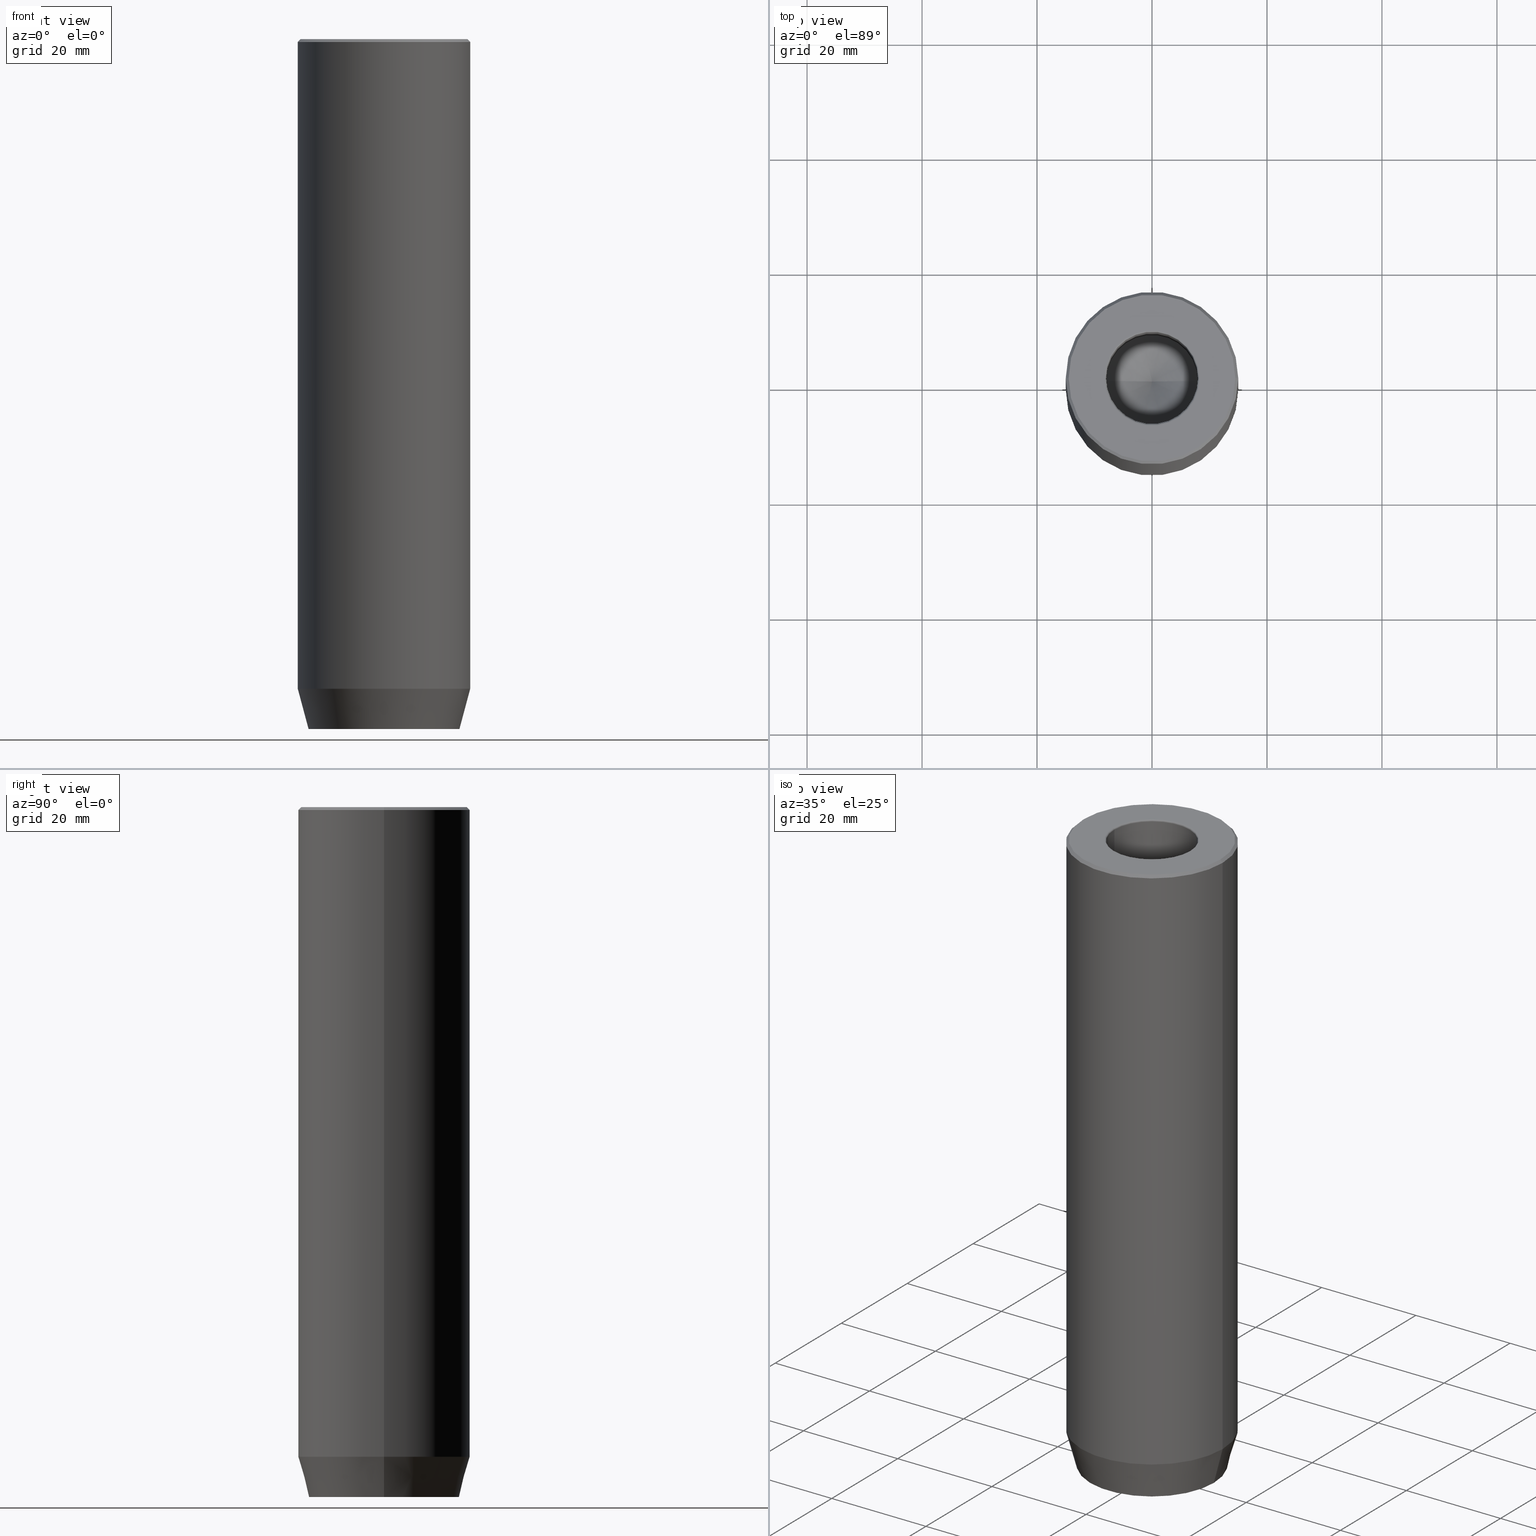
[diagram: canonical four-view strip — front | top / right | iso, engineering-drawing reading convention]
A machine part, canonical four-view strip (front | top / right | iso — engineering-drawing reading convention). The complete STEP part file that produces these views, byte-faithful:
ISO-10303-21;
HEADER;
FILE_DESCRIPTION (( 'STEP AP203' ),
    '1' );
FILE_NAME ('fe80.STEP',
    '2024-01-02T17:25:29',
    ( '' ),
    ( '' ),
    'SwSTEP 2.0',
    'SolidWorks 2019',
    '' );
FILE_SCHEMA (( 'CONFIG_CONTROL_DESIGN' ));
ENDSEC;

DATA;
#1 = CC_DESIGN_DATE_AND_TIME_ASSIGNMENT ( #409, #550, ( #103 ) ) ;
#2 = DIRECTION ( 'NONE',  ( 1.000000000000000000, 0.000000000000000000, 0.000000000000000000 ) ) ;
#3 = CONICAL_SURFACE ( 'NONE', #311, 14.49999999999999645, 0.7853981633974533860 ) ;
#4 = ORGANIZATION ( 'NEUR�EN�', 'NEUR�EN�', '' ) ;
#5 = DIRECTION ( 'NONE',  ( -1.000000000000000000, 1.224646799147353207E-16, 0.000000000000000000 ) ) ;
#6 =( NAMED_UNIT ( * ) PLANE_ANGLE_UNIT ( ) SI_UNIT ( $, .RADIAN. ) );
#7 = DIRECTION ( 'NONE',  ( 0.4999999999999999445, 0.8660254037844387076, -0.000000000000000000 ) ) ;
#8 = ORIENTED_EDGE ( 'NONE', *, *, #606, .F. ) ;
#9 = ORIENTED_EDGE ( 'NONE', *, *, #316, .T. ) ;
#10 = CARTESIAN_POINT ( 'NONE',  ( -7.999999999999994671, 9.797174393178819741E-16, -30.00000000000000000 ) ) ;
#11 = APPROVAL_DATE_TIME ( #548, #631 ) ;
#12 = VECTOR ( 'NONE', #487, 1000.000000000000000 ) ;
#13 = CARTESIAN_POINT ( 'NONE',  ( 0.000000000000000000, 0.000000000000000000, 0.000000000000000000 ) ) ;
#14 = VECTOR ( 'NONE', #278, 1000.000000000000000 ) ;
#15 = FACE_OUTER_BOUND ( 'NONE', #90, .T. ) ;
#16 = EDGE_CURVE ( 'NONE', #70, #596, #638, .T. ) ;
#17 = FACE_BOUND ( 'NONE', #270, .T. ) ;
#18 = CARTESIAN_POINT ( 'NONE',  ( 0.000000000000000000, 13.12435565298213369, -120.0000000000000000 ) ) ;
#19 = PERSON_AND_ORGANIZATION ( #236, #4 ) ;
#20 = PRODUCT ( 'fe80', 'fe80', '', ( #532 ) ) ;
#21 = CARTESIAN_POINT ( 'NONE',  ( 0.000000000000000000, 0.000000000000000000, -112.9999999999999858 ) ) ;
#22 = TOROIDAL_SURFACE ( 'NONE', #554, 8.299999999999997158, 0.2999999999999999889 ) ;
#23 = DIRECTION ( 'NONE',  ( 1.000000000000000000, 0.000000000000000000, 0.000000000000000000 ) ) ;
#24 = CIRCLE ( 'NONE', #263, 13.12435565298213369 ) ;
#25 = CC_DESIGN_APPROVAL ( #631, ( #103 ) ) ;
#26 = ORIENTED_EDGE ( 'NONE', *, *, #186, .F. ) ;
#27 = ADVANCED_FACE ( 'NONE', ( #275, #130 ), #382, .T. ) ;
#28 = DIRECTION ( 'NONE',  ( -0.000000000000000000, -0.000000000000000000, -1.000000000000000000 ) ) ;
#29 = FACE_OUTER_BOUND ( 'NONE', #361, .T. ) ;
#30 = ORIENTED_EDGE ( 'NONE', *, *, #316, .F. ) ;
#31 = DIRECTION ( 'NONE',  ( -1.000000000000000000, 0.000000000000000000, 0.000000000000000000 ) ) ;
#32 = ORIENTED_EDGE ( 'NONE', *, *, #100, .F. ) ;
#33 = ORIENTED_EDGE ( 'NONE', *, *, #589, .F. ) ;
#34 = DIRECTION ( 'NONE',  ( 0.2588190451025213501, 0.000000000000000000, 0.9659258262890680902 ) ) ;
#35 = ORIENTED_EDGE ( 'NONE', *, *, #568, .F. ) ;
#36 = CIRCLE ( 'NONE', #57, 8.299999999999997158 ) ;
#37 = VECTOR ( 'NONE', #28, 1000.000000000000000 ) ;
#38 = EDGE_LOOP ( 'NONE', ( #633, #33 ) ) ;
#39 = CARTESIAN_POINT ( 'NONE',  ( -15.00000000000000000, 1.836970198721029589E-15, -112.9999999999999858 ) ) ;
#40 = ADVANCED_FACE ( 'NONE', ( #29 ), #373, .F. ) ;
#41 = VERTEX_POINT ( 'NONE', #517 ) ;
#42 = PERSON_AND_ORGANIZATION_ROLE ( 'design_owner' ) ;
#43 = DIRECTION ( 'NONE',  ( -0.8660254037844387076, 0.4999999999999997224, 0.000000000000000000 ) ) ;
#44 = AXIS2_PLACEMENT_3D ( 'NONE', #619, #463, #479 ) ;
#45 = LINE ( 'NONE', #441, #12 ) ;
#46 = VECTOR ( 'NONE', #245, 1000.000000000000000 ) ;
#47 = AXIS2_PLACEMENT_3D ( 'NONE', #445, #260, #5 ) ;
#48 = ADVANCED_FACE ( 'NONE', ( #76 ), #73, .F. ) ;
#49 = LINE ( 'NONE', #443, #46 ) ;
#50 = ORIENTED_EDGE ( 'NONE', *, *, #289, .T. ) ;
#51 = PRODUCT_DEFINITION ( 'NEZN�M�', '', #170, #101 ) ;
#52 = VECTOR ( 'NONE', #438, 1000.000000000000000 ) ;
#53 = DATE_AND_TIME ( #495, #87 ) ;
#54 = CARTESIAN_POINT ( 'NONE',  ( -4.000000000000001776, -2.309401076758503368, -114.2000000000000028 ) ) ;
#55 = ORIENTED_EDGE ( 'NONE', *, *, #365, .T. ) ;
#56 = ORIENTED_EDGE ( 'NONE', *, *, #298, .T. ) ;
#57 = AXIS2_PLACEMENT_3D ( 'NONE', #13, #97, #549 ) ;
#58 = CIRCLE ( 'NONE', #538, 15.00000000000000000 ) ;
#59 = PLANE ( 'NONE',  #630 ) ;
#60 = ORIENTED_EDGE ( 'NONE', *, *, #153, .F. ) ;
#61 = ORIENTED_EDGE ( 'NONE', *, *, #132, .F. ) ;
#62 = DIRECTION ( 'NONE',  ( -0.000000000000000000, -0.000000000000000000, 1.000000000000000000 ) ) ;
#63 = FACE_OUTER_BOUND ( 'NONE', #286, .T. ) ;
#64 = CIRCLE ( 'NONE', #225, 7.999999999999994671 ) ;
#65 = EDGE_CURVE ( 'NONE', #302, #269, #189, .T. ) ;
#66 = DIRECTION ( 'NONE',  ( 3.755786496842898071E-16, 1.000000000000000000, 0.000000000000000000 ) ) ;
#67 = EDGE_CURVE ( 'NONE', #422, #106, #467, .T. ) ;
#68 = ORIENTED_EDGE ( 'NONE', *, *, #617, .F. ) ;
#69 = CARTESIAN_POINT ( 'NONE',  ( 8.673617379884035472E-16, -4.618802153517004960, -114.2000000000000028 ) ) ;
#70 = VERTEX_POINT ( 'NONE', #230 ) ;
#71 = APPROVAL_STATUS ( 'not_yet_approved' ) ;
#72 = PLANE ( 'NONE',  #212 ) ;
#73 = PLANE ( 'NONE',  #384 ) ;
#74 = APPLICATION_CONTEXT ( 'configuration controlled 3d designs of mechanical parts and assemblies' ) ;
#75 = DIRECTION ( 'NONE',  ( 1.000000000000000000, 0.000000000000000000, 0.000000000000000000 ) ) ;
#76 = FACE_OUTER_BOUND ( 'NONE', #399, .T. ) ;
#77 = AXIS2_PLACEMENT_3D ( 'NONE', #121, #516, #229 ) ;
#78 = ORIENTED_EDGE ( 'NONE', *, *, #514, .T. ) ;
#79 = DIRECTION ( 'NONE',  ( -0.000000000000000000, -0.000000000000000000, 1.000000000000000000 ) ) ;
#80 = DIRECTION ( 'NONE',  ( -3.755786496842898071E-16, -1.000000000000000000, 0.000000000000000000 ) ) ;
#81 = DIRECTION ( 'NONE',  ( -0.000000000000000000, -0.000000000000000000, 1.000000000000000000 ) ) ;
#82 = ORIENTED_EDGE ( 'NONE', *, *, #364, .F. ) ;
#83 = EDGE_LOOP ( 'NONE', ( #217, #234, #579, #128 ) ) ;
#84 = CARTESIAN_POINT ( 'NONE',  ( 0.000000000000000000, 0.000000000000000000, -114.2000000000000028 ) ) ;
#85 = DIRECTION ( 'NONE',  ( 1.000000000000000000, 0.000000000000000000, 0.000000000000000000 ) ) ;
#86 = EDGE_CURVE ( 'NONE', #561, #158, #431, .T. ) ;
#87 = LOCAL_TIME ( 18, 25, 29.00000000000000000, #192 ) ;
#88 = ORIENTED_EDGE ( 'NONE', *, *, #233, .F. ) ;
#89 = DIRECTION ( 'NONE',  ( -0.000000000000000000, -0.000000000000000000, 1.000000000000000000 ) ) ;
#90 = EDGE_LOOP ( 'NONE', ( #461, #60, #123, #290 ) ) ;
#91 = PLANE ( 'NONE',  #455 ) ;
#92 = EDGE_LOOP ( 'NONE', ( #592, #280, #26, #428 ) ) ;
#93 = ADVANCED_FACE ( 'NONE', ( #323 ), #488, .T. ) ;
#94 = LINE ( 'NONE', #574, #143 ) ;
#95 = VECTOR ( 'NONE', #416, 999.9999999999998863 ) ;
#96 = CARTESIAN_POINT ( 'NONE',  ( 7.999999999999996447, 0.000000000000000000, 0.000000000000000000 ) ) ;
#97 = DIRECTION ( 'NONE',  ( 0.000000000000000000, 0.000000000000000000, -1.000000000000000000 ) ) ;
#98 = CARTESIAN_POINT ( 'NONE',  ( -4.000000000000001776, -2.309401076758503368, -120.0000000000000000 ) ) ;
#99 = CARTESIAN_POINT ( 'NONE',  ( -4.000000000000000888, 1.502314598737159623E-15, -114.2000000000000028 ) ) ;
#100 = EDGE_CURVE ( 'NONE', #191, #302, #375, .T. ) ;
#101 = DESIGN_CONTEXT ( 'detailed design', #74, 'design' ) ;
#102 = CIRCLE ( 'NONE', #312, 14.49999999999999645 ) ;
#103 = SECURITY_CLASSIFICATION ( '', '', #215 ) ;
#104 = DIRECTION ( 'NONE',  ( 3.755786496842898071E-16, 1.000000000000000000, 0.000000000000000000 ) ) ;
#105 = APPROVAL_DATE_TIME ( #53, #562 ) ;
#106 = VERTEX_POINT ( 'NONE', #142 ) ;
#107 = DIRECTION ( 'NONE',  ( 0.5000000000000000000, -0.8660254037844387076, 0.000000000000000000 ) ) ;
#108 = SHAPE_DEFINITION_REPRESENTATION ( #594, #634 ) ;
#109 = EDGE_CURVE ( 'NONE', #402, #269, #444, .T. ) ;
#110 = EDGE_CURVE ( 'NONE', #158, #612, #294, .T. ) ;
#111 = CARTESIAN_POINT ( 'NONE',  ( 1.999999999999999556, -3.464101615137754386, -114.2000000000000028 ) ) ;
#112 = ORIENTED_EDGE ( 'NONE', *, *, #224, .T. ) ;
#113 = VECTOR ( 'NONE', #140, 1000.000000000000000 ) ;
#114 = CIRCLE ( 'NONE', #284, 15.00000000000000000 ) ;
#115 = FACE_OUTER_BOUND ( 'NONE', #276, .T. ) ;
#116 = DIRECTION ( 'NONE',  ( -0.000000000000000000, -0.000000000000000000, 1.000000000000000000 ) ) ;
#117 = PERSON_AND_ORGANIZATION_ROLE ( 'creator' ) ;
#118 = DIRECTION ( 'NONE',  ( 1.000000000000000000, 0.000000000000000000, 0.000000000000000000 ) ) ;
#119 = ORIENTED_EDGE ( 'NONE', *, *, #365, .F. ) ;
#120 = CALENDAR_DATE ( 2024, 2, 1 ) ;
#121 = CARTESIAN_POINT ( 'NONE',  ( 0.000000000000000000, 0.000000000000000000, -112.9999999999999858 ) ) ;
#122 = DIRECTION ( 'NONE',  ( -0.8660254037844385966, -0.4999999999999998890, 0.000000000000000000 ) ) ;
#123 = ORIENTED_EDGE ( 'NONE', *, *, #568, .T. ) ;
#124 = DIRECTION ( 'NONE',  ( 1.000000000000000000, 0.000000000000000000, 0.000000000000000000 ) ) ;
#125 = VECTOR ( 'NONE', #489, 1000.000000000000227 ) ;
#126 = EDGE_LOOP ( 'NONE', ( #68, #112, #569, #572 ) ) ;
#127 = CIRCLE ( 'NONE', #357, 13.12435565298213369 ) ;
#128 = ORIENTED_EDGE ( 'NONE', *, *, #235, .T. ) ;
#129 = CARTESIAN_POINT ( 'NONE',  ( 2.000000000000000000, 3.464101615137755275, -114.2000000000000028 ) ) ;
#130 = FACE_OUTER_BOUND ( 'NONE', #38, .T. ) ;
#131 = EDGE_LOOP ( 'NONE', ( #61, #282, #505, #327 ) ) ;
#132 = EDGE_CURVE ( 'NONE', #160, #70, #94, .T. ) ;
#133 = DIRECTION ( 'NONE',  ( 1.000000000000000000, 0.000000000000000000, 0.000000000000000000 ) ) ;
#134 = VECTOR ( 'NONE', #122, 1000.000000000000227 ) ;
#135 = DIRECTION ( 'NONE',  ( 1.000000000000000000, 0.000000000000000000, 0.000000000000000000 ) ) ;
#136 = ORIENTED_EDGE ( 'NONE', *, *, #523, .T. ) ;
#137 = DIRECTION ( 'NONE',  ( 1.000000000000000000, 0.000000000000000000, 0.000000000000000000 ) ) ;
#138 = CARTESIAN_POINT ( 'NONE',  ( -7.999999999999994671, 9.797174393178819741E-16, -30.00000000000000000 ) ) ;
#139 = VECTOR ( 'NONE', #560, 1000.000000000000000 ) ;
#140 = DIRECTION ( 'NONE',  ( -0.000000000000000000, -0.000000000000000000, -1.000000000000000000 ) ) ;
#141 = ADVANCED_FACE ( 'NONE', ( #197 ), #394, .F. ) ;
#142 = CARTESIAN_POINT ( 'NONE',  ( 4.000000000000000000, -2.309401076758503368, -114.2000000000000028 ) ) ;
#143 = VECTOR ( 'NONE', #89, 1000.000000000000000 ) ;
#144 = MANIFOLD_SOLID_BREP ( 'Odebrat vysunut�m1', #219 ) ;
#145 = DIRECTION ( 'NONE',  ( -0.000000000000000000, 0.000000000000000000, -1.000000000000000000 ) ) ;
#146 = AXIS2_PLACEMENT_3D ( 'NONE', #492, #625, #135 ) ;
#147 = CIRCLE ( 'NONE', #408, 7.999999999999994671 ) ;
#148 = ORIENTED_EDGE ( 'NONE', *, *, #65, .T. ) ;
#149 = CC_DESIGN_APPROVAL ( #500, ( #170 ) ) ;
#150 = CARTESIAN_POINT ( 'NONE',  ( 7.999999999999996447, 0.000000000000000000, -0.2999999999999999889 ) ) ;
#151 = ORIENTED_EDGE ( 'NONE', *, *, #163, .F. ) ;
#152 = PLANE ( 'NONE',  #200 ) ;
#153 = EDGE_CURVE ( 'NONE', #178, #513, #452, .T. ) ;
#154 = DIRECTION ( 'NONE',  ( 0.8660254037844385966, 0.4999999999999999445, 0.000000000000000000 ) ) ;
#155 = EDGE_LOOP ( 'NONE', ( #358, #305, #436, #172, #78, #50 ) ) ;
#156 = FACE_OUTER_BOUND ( 'NONE', #155, .T. ) ;
#157 = CYLINDRICAL_SURFACE ( 'NONE', #295, 15.00000000000000000 ) ;
#158 = VERTEX_POINT ( 'NONE', #248 ) ;
#159 = PERSON_AND_ORGANIZATION ( #236, #4 ) ;
#160 = VERTEX_POINT ( 'NONE', #39 ) ;
#161 = VECTOR ( 'NONE', #499, 1000.000000000000000 ) ;
#162 = LINE ( 'NONE', #10, #161 ) ;
#163 = EDGE_CURVE ( 'NONE', #422, #256, #49, .T. ) ;
#164 = COORDINATED_UNIVERSAL_TIME_OFFSET ( 1, 0, .AHEAD. ) ;
#165 = LINE ( 'NONE', #99, #507 ) ;
#166 = CALENDAR_DATE ( 2024, 2, 1 ) ;
#167 = CARTESIAN_POINT ( 'NONE',  ( 0.000000000000000000, 0.000000000000000000, 0.000000000000000000 ) ) ;
#168 = VERTEX_POINT ( 'NONE', #250 ) ;
#169 = VECTOR ( 'NONE', #407, 1000.000000000000000 ) ;
#170 = PRODUCT_DEFINITION_FORMATION_WITH_SPECIFIED_SOURCE ( 'LIBOVOLN�', '', #20, .NOT_KNOWN. ) ;
#171 = DIRECTION ( 'NONE',  ( -0.8660254037844387076, 0.4999999999999997224, 0.000000000000000000 ) ) ;
#172 = ORIENTED_EDGE ( 'NONE', *, *, #186, .T. ) ;
#173 = PERSON_AND_ORGANIZATION_ROLE ( 'classification_officer' ) ;
#174 = CARTESIAN_POINT ( 'NONE',  ( 7.999999999999994671, 0.000000000000000000, -30.00000000000000000 ) ) ;
#175 = EDGE_CURVE ( 'NONE', #464, #247, #299, .T. ) ;
#176 = ORIENTED_EDGE ( 'NONE', *, *, #345, .T. ) ;
#177 = APPLICATION_CONTEXT ( 'configuration controlled 3d designs of mechanical parts and assemblies' ) ;
#178 = VERTEX_POINT ( 'NONE', #334 ) ;
#179 = CARTESIAN_POINT ( 'NONE',  ( 0.000000000000000000, 0.000000000000000000, -0.2999999999999999889 ) ) ;
#180 = DIRECTION ( 'NONE',  ( 1.000000000000000000, 0.000000000000000000, 0.000000000000000000 ) ) ;
#181 = VERTEX_POINT ( 'NONE', #285 ) ;
#182 = CARTESIAN_POINT ( 'NONE',  ( 0.000000000000000000, 0.000000000000000000, 0.000000000000000000 ) ) ;
#183 = AXIS2_PLACEMENT_3D ( 'NONE', #403, #400, #434 ) ;
#184 = DIRECTION ( 'NONE',  ( -1.000000000000000000, 0.000000000000000000, -0.000000000000000000 ) ) ;
#185 = ADVANCED_FACE ( 'NONE', ( #578 ), #635, .F. ) ;
#186 = EDGE_CURVE ( 'NONE', #106, #519, #347, .T. ) ;
#187 = LINE ( 'NONE', #430, #398 ) ;
#188 = DIRECTION ( 'NONE',  ( -0.000000000000000000, -0.000000000000000000, 1.000000000000000000 ) ) ;
#189 = CIRCLE ( 'NONE', #543, 7.999999999999996447 ) ;
#190 = DIRECTION ( 'NONE',  ( -0.000000000000000000, -0.000000000000000000, 1.000000000000000000 ) ) ;
#191 = VERTEX_POINT ( 'NONE', #138 ) ;
#192 = COORDINATED_UNIVERSAL_TIME_OFFSET ( 1, 0, .AHEAD. ) ;
#193 = CARTESIAN_POINT ( 'NONE',  ( -2.000000000000000000, 3.464101615137755275, -120.0000000000000000 ) ) ;
#194 = VECTOR ( 'NONE', #618, 1000.000000000000000 ) ;
#195 = VERTEX_POINT ( 'NONE', #539 ) ;
#196 = DIRECTION ( 'NONE',  ( 0.8660254037844387076, -0.4999999999999997780, 0.000000000000000000 ) ) ;
#197 = FACE_OUTER_BOUND ( 'NONE', #527, .T. ) ;
#198 = CARTESIAN_POINT ( 'NONE',  ( 0.000000000000000000, 0.000000000000000000, 0.000000000000000000 ) ) ;
#199 = AXIS2_PLACEMENT_3D ( 'NONE', #310, #506, #362 ) ;
#200 = AXIS2_PLACEMENT_3D ( 'NONE', #84, #333, #337 ) ;
#201 = CARTESIAN_POINT ( 'NONE',  ( 4.000000000000000000, -2.309401076758503368, -120.0000000000000000 ) ) ;
#202 = ADVANCED_FACE ( 'NONE', ( #435 ), #306, .T. ) ;
#203 = LINE ( 'NONE', #459, #169 ) ;
#204 = CARTESIAN_POINT ( 'NONE',  ( 0.000000000000000000, 0.000000000000000000, -120.0000000000000000 ) ) ;
#205 = DIRECTION ( 'NONE',  ( 0.000000000000000000, 0.000000000000000000, -1.000000000000000000 ) ) ;
#206 = AXIS2_PLACEMENT_3D ( 'NONE', #623, #188, #180 ) ;
#207 = DIRECTION ( 'NONE',  ( -0.000000000000000000, -0.000000000000000000, -1.000000000000000000 ) ) ;
#208 = EDGE_CURVE ( 'NONE', #106, #561, #339, .T. ) ;
#209 = AXIS2_PLACEMENT_3D ( 'NONE', #584, #288, #145 ) ;
#210 = PERSON_AND_ORGANIZATION ( #236, #4 ) ;
#211 = VECTOR ( 'NONE', #309, 1000.000000000000000 ) ;
#212 = AXIS2_PLACEMENT_3D ( 'NONE', #271, #466, #226 ) ;
#213 = DIRECTION ( 'NONE',  ( -0.000000000000000000, -0.000000000000000000, 1.000000000000000000 ) ) ;
#214 = ORIENTED_EDGE ( 'NONE', *, *, #132, .T. ) ;
#215 = SECURITY_CLASSIFICATION_LEVEL ( 'unclassified' ) ;
#216 = CARTESIAN_POINT ( 'NONE',  ( 4.000000000000000000, 2.309401076758504257, -114.2000000000000028 ) ) ;
#217 = ORIENTED_EDGE ( 'NONE', *, *, #110, .T. ) ;
#218 = APPROVAL_ROLE ( '' ) ;
#219 = CLOSED_SHELL ( 'NONE', ( #202, #141, #503, #411, #277, #404, #27, #497, #627, #93, #297, #432, #40, #324, #541, #48, #251, #268, #185, #393, #637 ) ) ;
#220 = FACE_OUTER_BOUND ( 'NONE', #475, .T. ) ;
#221 = ORIENTED_EDGE ( 'NONE', *, *, #449, .F. ) ;
#222 = PERSON_AND_ORGANIZATION_ROLE ( 'design_supplier' ) ;
#223 = VECTOR ( 'NONE', #392, 1000.000000000000000 ) ;
#224 = EDGE_CURVE ( 'NONE', #195, #596, #45, .T. ) ;
#225 = AXIS2_PLACEMENT_3D ( 'NONE', #597, #622, #133 ) ;
#226 = DIRECTION ( 'NONE',  ( -0.8660254037844385966, -0.4999999999999998890, 0.000000000000000000 ) ) ;
#227 = CARTESIAN_POINT ( 'NONE',  ( 4.000000000000000000, 0.000000000000000000, -114.2000000000000028 ) ) ;
#228 = CC_DESIGN_PERSON_AND_ORGANIZATION_ASSIGNMENT ( #19, #117, ( #51 ) ) ;
#229 = DIRECTION ( 'NONE',  ( 1.000000000000000000, 0.000000000000000000, 0.000000000000000000 ) ) ;
#230 = CARTESIAN_POINT ( 'NONE',  ( -15.00000000000000000, 1.836970198721029589E-15, -0.4999999999999970024 ) ) ;
#231 = ORIENTED_EDGE ( 'NONE', *, *, #547, .F. ) ;
#232 = LINE ( 'NONE', #462, #14 ) ;
#233 = EDGE_CURVE ( 'NONE', #414, #247, #244, .T. ) ;
#234 = ORIENTED_EDGE ( 'NONE', *, *, #340, .F. ) ;
#235 = EDGE_CURVE ( 'NONE', #519, #158, #582, .T. ) ;
#236 = PERSON ( 'NEUR�EN�', 'NEUR�EN�', 'NEUR�EN�', ('NEUR�EN�'), ('NEUR�EN�'), ('NEUR�EN�') ) ;
#237 = ORIENTED_EDGE ( 'NONE', *, *, #208, .F. ) ;
#238 = CARTESIAN_POINT ( 'NONE',  ( 0.000000000000000000, 0.000000000000000000, 0.000000000000000000 ) ) ;
#239 = AXIS2_PLACEMENT_3D ( 'NONE', #315, #374, #124 ) ;
#240 = DIRECTION ( 'NONE',  ( 0.000000000000000000, -1.000000000000000000, 0.000000000000000000 ) ) ;
#241 = CARTESIAN_POINT ( 'NONE',  ( 2.168404344971008868E-16, 4.618802153517005848, -114.2000000000000028 ) ) ;
#242 = VERTEX_POINT ( 'NONE', #341 ) ;
#243 = PERSON_AND_ORGANIZATION ( #236, #4 ) ;
#244 = LINE ( 'NONE', #193, #336 ) ;
#245 = DIRECTION ( 'NONE',  ( -0.000000000000000000, -0.000000000000000000, -1.000000000000000000 ) ) ;
#246 = AXIS2_PLACEMENT_3D ( 'NONE', #179, #525, #75 ) ;
#247 = VERTEX_POINT ( 'NONE', #534 ) ;
#248 = CARTESIAN_POINT ( 'NONE',  ( 8.673617379884035472E-16, -4.618802153517004960, -120.0000000000000000 ) ) ;
#249 = ORIENTED_EDGE ( 'NONE', *, *, #364, .T. ) ;
#250 = CARTESIAN_POINT ( 'NONE',  ( -8.296478875781655917E-15, 0.000000000000000000, -34.80688495222048573 ) ) ;
#251 = ADVANCED_FACE ( 'NONE', ( #537 ), #91, .F. ) ;
#252 = DIRECTION ( 'NONE',  ( 1.000000000000000000, 0.000000000000000000, 0.000000000000000000 ) ) ;
#253 = CARTESIAN_POINT ( 'NONE',  ( -7.999999999999996447, 9.797174393178821713E-16, -0.2999999999999999889 ) ) ;
#254 = VERTEX_POINT ( 'NONE', #583 ) ;
#255 = LOCAL_TIME ( 18, 25, 29.00000000000000000, #419 ) ;
#256 = VERTEX_POINT ( 'NONE', #454 ) ;
#257 = CARTESIAN_POINT ( 'NONE',  ( 2.000000000000000000, 3.464101615137755275, -114.2000000000000028 ) ) ;
#258 = ORIENTED_EDGE ( 'NONE', *, *, #109, .T. ) ;
#259 = EDGE_CURVE ( 'NONE', #262, #596, #496, .T. ) ;
#260 = DIRECTION ( 'NONE',  ( 1.224646799147353207E-16, 1.000000000000000000, 0.000000000000000000 ) ) ;
#261 = CARTESIAN_POINT ( 'NONE',  ( -4.000000000000000888, 1.502314598737159623E-15, -120.0000000000000000 ) ) ;
#262 = VERTEX_POINT ( 'NONE', #602 ) ;
#263 = AXIS2_PLACEMENT_3D ( 'NONE', #204, #349, #2 ) ;
#264 = CARTESIAN_POINT ( 'NONE',  ( 0.000000000000000000, 0.000000000000000000, -0.2999999999999999889 ) ) ;
#265 = DATE_AND_TIME ( #166, #255 ) ;
#266 = CARTESIAN_POINT ( 'NONE',  ( 0.000000000000000000, 0.000000000000000000, -120.0000000000000000 ) ) ;
#267 = EDGE_LOOP ( 'NONE', ( #292, #214, #624, #521 ) ) ;
#268 = ADVANCED_FACE ( 'NONE', ( #397 ), #551, .F. ) ;
#269 = VERTEX_POINT ( 'NONE', #150 ) ;
#270 = EDGE_LOOP ( 'NONE', ( #380, #9 ) ) ;
#271 = CARTESIAN_POINT ( 'NONE',  ( -2.000000000000000000, 3.464101615137755275, -114.2000000000000028 ) ) ;
#272 = CARTESIAN_POINT ( 'NONE',  ( -4.000000000000000888, 1.502314598737159623E-15, -114.2000000000000028 ) ) ;
#273 = VECTOR ( 'NONE', #451, 999.9999999999998863 ) ;
#274 = DIRECTION ( 'NONE',  ( -0.000000000000000000, -0.000000000000000000, 1.000000000000000000 ) ) ;
#275 = FACE_BOUND ( 'NONE', #433, .T. ) ;
#276 = EDGE_LOOP ( 'NONE', ( #231, #481, #545 ) ) ;
#277 = ADVANCED_FACE ( 'NONE', ( #504 ), #346, .T. ) ;
#278 = DIRECTION ( 'NONE',  ( 0.000000000000000000, -1.000000000000000000, 0.000000000000000000 ) ) ;
#279 = DIRECTION ( 'NONE',  ( -0.000000000000000000, -0.000000000000000000, 1.000000000000000000 ) ) ;
#280 = ORIENTED_EDGE ( 'NONE', *, *, #235, .F. ) ;
#281 = CARTESIAN_POINT ( 'NONE',  ( -14.49999999999999645, 0.000000000000000000, 0.000000000000000000 ) ) ;
#282 = ORIENTED_EDGE ( 'NONE', *, *, #524, .T. ) ;
#283 =( NAMED_UNIT ( * ) SI_UNIT ( $, .STERADIAN. ) SOLID_ANGLE_UNIT ( ) );
#284 = AXIS2_PLACEMENT_3D ( 'NONE', #21, #274, #318 ) ;
#285 = CARTESIAN_POINT ( 'NONE',  ( -4.000000000000000000, 2.309401076758504257, -114.2000000000000028 ) ) ;
#286 = EDGE_LOOP ( 'NONE', ( #383, #119, #421, #457 ) ) ;
#287 = APPLICATION_PROTOCOL_DEFINITION ( 'international standard', 'config_control_design', 1994, #177 ) ;
#288 = DIRECTION ( 'NONE',  ( 1.000000000000000000, 0.000000000000000000, -0.000000000000000000 ) ) ;
#289 = EDGE_CURVE ( 'NONE', #242, #181, #165, .T. ) ;
#290 = ORIENTED_EDGE ( 'NONE', *, *, #65, .F. ) ;
#291 = CARTESIAN_POINT ( 'NONE',  ( -1.999999999999999112, -3.464101615137755275, -114.2000000000000028 ) ) ;
#292 = ORIENTED_EDGE ( 'NONE', *, *, #556, .T. ) ;
#293 = AXIS2_PLACEMENT_3D ( 'NONE', #111, #107, #154 ) ;
#294 = LINE ( 'NONE', #529, #575 ) ;
#295 = AXIS2_PLACEMENT_3D ( 'NONE', #501, #62, #356 ) ;
#296 = LOCAL_TIME ( 18, 25, 29.00000000000000000, #558 ) ;
#297 = ADVANCED_FACE ( 'NONE', ( #63 ), #3, .T. ) ;
#298 = EDGE_CURVE ( 'NONE', #612, #414, #591, .T. ) ;
#299 = LINE ( 'NONE', #241, #223 ) ;
#300 = APPLICATION_PROTOCOL_DEFINITION ( 'international standard', 'config_control_design', 1994, #74 ) ;
#301 = LINE ( 'NONE', #54, #367 ) ;
#302 = VERTEX_POINT ( 'NONE', #253 ) ;
#303 = DIRECTION ( 'NONE',  ( -0.000000000000000000, -0.000000000000000000, 1.000000000000000000 ) ) ;
#304 = LINE ( 'NONE', #450, #273 ) ;
#305 = ORIENTED_EDGE ( 'NONE', *, *, #412, .T. ) ;
#306 = TOROIDAL_SURFACE ( 'NONE', #396, 8.299999999999997158, 0.2999999999999999889 ) ;
#307 = AXIS2_PLACEMENT_3D ( 'NONE', #593, #381, #483 ) ;
#308 = FACE_OUTER_BOUND ( 'NONE', #536, .T. ) ;
#309 = DIRECTION ( 'NONE',  ( -0.000000000000000000, -0.000000000000000000, 1.000000000000000000 ) ) ;
#310 = CARTESIAN_POINT ( 'NONE',  ( 0.000000000000000000, 0.000000000000000000, -112.9999999999999858 ) ) ;
#311 = AXIS2_PLACEMENT_3D ( 'NONE', #351, #205, #601 ) ;
#312 = AXIS2_PLACEMENT_3D ( 'NONE', #401, #353, #544 ) ;
#313 = EDGE_LOOP ( 'NONE', ( #325, #559, #321 ) ) ;
#314 = APPROVAL_PERSON_ORGANIZATION ( #210, #631, #465 ) ;
#315 = CARTESIAN_POINT ( 'NONE',  ( 0.000000000000000000, 0.000000000000000000, -30.00000000000000000 ) ) ;
#316 = EDGE_CURVE ( 'NONE', #513, #178, #36, .T. ) ;
#317 = DIRECTION ( 'NONE',  ( 1.000000000000000000, 0.000000000000000000, 0.000000000000000000 ) ) ;
#318 = DIRECTION ( 'NONE',  ( 1.000000000000000000, 0.000000000000000000, 0.000000000000000000 ) ) ;
#319 = ORIENTED_EDGE ( 'NONE', *, *, #298, .F. ) ;
#320 = CC_DESIGN_PERSON_AND_ORGANIZATION_ASSIGNMENT ( #159, #610, ( #170 ) ) ;
#321 = ORIENTED_EDGE ( 'NONE', *, *, #470, .T. ) ;
#322 = LINE ( 'NONE', #509, #376 ) ;
#323 = FACE_OUTER_BOUND ( 'NONE', #515, .T. ) ;
#324 = ADVANCED_FACE ( 'NONE', ( #15 ), #22, .T. ) ;
#325 = ORIENTED_EDGE ( 'NONE', *, *, #385, .F. ) ;
#326 = DIRECTION ( 'NONE',  ( 0.000000000000000000, 0.000000000000000000, -1.000000000000000000 ) ) ;
#327 = ORIENTED_EDGE ( 'NONE', *, *, #585, .T. ) ;
#328 = ORIENTED_EDGE ( 'NONE', *, *, #412, .F. ) ;
#329 = CC_DESIGN_PERSON_AND_ORGANIZATION_ASSIGNMENT ( #486, #42, ( #20 ) ) ;
#330 = CARTESIAN_POINT ( 'NONE',  ( -13.12435565298213369, 1.722120106425316888E-15, -120.0000000000000000 ) ) ;
#331 = CARTESIAN_POINT ( 'NONE',  ( 0.000000000000000000, 0.000000000000000000, 0.000000000000000000 ) ) ;
#332 = ORIENTED_EDGE ( 'NONE', *, *, #456, .T. ) ;
#333 = DIRECTION ( 'NONE',  ( 0.000000000000000000, 0.000000000000000000, -1.000000000000000000 ) ) ;
#334 = CARTESIAN_POINT ( 'NONE',  ( 8.299999999999997158, 0.000000000000000000, 0.000000000000000000 ) ) ;
#335 = ORIENTED_EDGE ( 'NONE', *, *, #606, .T. ) ;
#336 = VECTOR ( 'NONE', #391, 999.9999999999998863 ) ;
#337 = DIRECTION ( 'NONE',  ( -1.000000000000000000, 0.000000000000000000, -0.000000000000000000 ) ) ;
#338 = AXIS2_PLACEMENT_3D ( 'NONE', #386, #577, #137 ) ;
#339 = LINE ( 'NONE', #533, #490 ) ;
#340 = EDGE_CURVE ( 'NONE', #242, #612, #301, .T. ) ;
#341 = CARTESIAN_POINT ( 'NONE',  ( -4.000000000000001776, -2.309401076758503368, -114.2000000000000028 ) ) ;
#342 = CARTESIAN_POINT ( 'NONE',  ( 8.673617379884035472E-16, -4.618802153517004960, -114.2000000000000028 ) ) ;
#343 = EDGE_CURVE ( 'NONE', #472, #160, #203, .T. ) ;
#344 = ORIENTED_EDGE ( 'NONE', *, *, #340, .T. ) ;
#345 = EDGE_CURVE ( 'NONE', #513, #302, #418, .T. ) ;
#346 = CONICAL_SURFACE ( 'NONE', #199, 15.00000000000000000, 0.2617993877991500740 ) ;
#347 = LINE ( 'NONE', #484, #125 ) ;
#348 = AXIS2_PLACEMENT_3D ( 'NONE', #167, #366, #553 ) ;
#349 = DIRECTION ( 'NONE',  ( -0.000000000000000000, -0.000000000000000000, 1.000000000000000000 ) ) ;
#350 = CC_DESIGN_PERSON_AND_ORGANIZATION_ASSIGNMENT ( #371, #173, ( #103 ) ) ;
#351 = CARTESIAN_POINT ( 'NONE',  ( 0.000000000000000000, 0.000000000000000000, 0.000000000000000000 ) ) ;
#352 = CARTESIAN_POINT ( 'NONE',  ( 0.000000000000000000, 0.000000000000000000, -0.4999999999999970024 ) ) ;
#353 = DIRECTION ( 'NONE',  ( -0.000000000000000000, -0.000000000000000000, 1.000000000000000000 ) ) ;
#354 =( LENGTH_UNIT ( ) NAMED_UNIT ( * ) SI_UNIT ( .MILLI., .METRE. ) );
#355 = UNCERTAINTY_MEASURE_WITH_UNIT (LENGTH_MEASURE( 1.000000000000000082E-05 ), #354, 'distance_accuracy_value', 'NONE');
#356 = DIRECTION ( 'NONE',  ( 1.000000000000000000, 0.000000000000000000, 0.000000000000000000 ) ) ;
#357 = AXIS2_PLACEMENT_3D ( 'NONE', #266, #369, #118 ) ;
#358 = ORIENTED_EDGE ( 'NONE', *, *, #449, .T. ) ;
#359 = APPROVAL_STATUS ( 'not_yet_approved' ) ;
#360 = DIRECTION ( 'NONE',  ( -0.8660254037844385966, 0.4999999999999998890, 0.000000000000000000 ) ) ;
#361 = EDGE_LOOP ( 'NONE', ( #32, #498, #258, #469 ) ) ;
#362 = DIRECTION ( 'NONE',  ( 1.000000000000000000, 0.000000000000000000, 0.000000000000000000 ) ) ;
#363 = PERSON_AND_ORGANIZATION ( #236, #4 ) ;
#364 = EDGE_CURVE ( 'NONE', #247, #256, #304, .T. ) ;
#365 = EDGE_CURVE ( 'NONE', #254, #195, #102, .T. ) ;
#366 = DIRECTION ( 'NONE',  ( 0.000000000000000000, -0.000000000000000000, 1.000000000000000000 ) ) ;
#367 = VECTOR ( 'NONE', #207, 1000.000000000000000 ) ;
#368 = APPROVAL_PERSON_ORGANIZATION ( #243, #562, #628 ) ;
#369 = DIRECTION ( 'NONE',  ( -0.000000000000000000, -0.000000000000000000, 1.000000000000000000 ) ) ;
#370 = ORIENTED_EDGE ( 'NONE', *, *, #440, .F. ) ;
#371 = PERSON_AND_ORGANIZATION ( #236, #4 ) ;
#372 = CARTESIAN_POINT ( 'NONE',  ( 0.000000000000000000, 0.000000000000000000, -30.00000000000000000 ) ) ;
#373 = CYLINDRICAL_SURFACE ( 'NONE', #406, 7.999999999999996447 ) ;
#374 = DIRECTION ( 'NONE',  ( -0.000000000000000000, -0.000000000000000000, 1.000000000000000000 ) ) ;
#375 = LINE ( 'NONE', #565, #425 ) ;
#376 = VECTOR ( 'NONE', #171, 1000.000000000000114 ) ;
#377 = LOCAL_TIME ( 18, 25, 29.00000000000000000, #605 ) ;
#378 = DIRECTION ( 'NONE',  ( 1.000000000000000000, 0.000000000000000000, 0.000000000000000000 ) ) ;
#379 = DIRECTION ( 'NONE',  ( -1.000000000000000000, 3.755786496842898071E-16, 0.000000000000000000 ) ) ;
#380 = ORIENTED_EDGE ( 'NONE', *, *, #153, .T. ) ;
#381 = DIRECTION ( 'NONE',  ( -0.000000000000000000, -0.000000000000000000, 1.000000000000000000 ) ) ;
#382 = PLANE ( 'NONE',  #535 ) ;
#383 = ORIENTED_EDGE ( 'NONE', *, *, #224, .F. ) ;
#384 = AXIS2_PLACEMENT_3D ( 'NONE', #272, #379, #80 ) ;
#385 = EDGE_CURVE ( 'NONE', #168, #191, #162, .T. ) ;
#386 = CARTESIAN_POINT ( 'NONE',  ( 0.000000000000000000, 0.000000000000000000, 0.000000000000000000 ) ) ;
#387 = DIRECTION ( 'NONE',  ( 1.000000000000000000, 0.000000000000000000, 0.000000000000000000 ) ) ;
#388 = EDGE_LOOP ( 'NONE', ( #511, #237, #442, #626 ) ) ;
#389 = DIRECTION ( 'NONE',  ( 0.000000000000000000, 0.000000000000000000, -1.000000000000000000 ) ) ;
#390 = CONICAL_SURFACE ( 'NONE', #439, 14.49999999999999645, 0.7853981633974533860 ) ;
#391 = DIRECTION ( 'NONE',  ( 0.8660254037844387076, 0.4999999999999999445, 0.000000000000000000 ) ) ;
#392 = DIRECTION ( 'NONE',  ( -0.000000000000000000, -0.000000000000000000, -1.000000000000000000 ) ) ;
#393 = ADVANCED_FACE ( 'NONE', ( #308 ), #59, .F. ) ;
#394 = CYLINDRICAL_SURFACE ( 'NONE', #566, 7.999999999999996447 ) ;
#395 = CC_DESIGN_PERSON_AND_ORGANIZATION_ASSIGNMENT ( #502, #222, ( #170 ) ) ;
#396 = AXIS2_PLACEMENT_3D ( 'NONE', #639, #190, #387 ) ;
#397 = FACE_OUTER_BOUND ( 'NONE', #92, .T. ) ;
#398 = VECTOR ( 'NONE', #34, 1000.000000000000000 ) ;
#399 = EDGE_LOOP ( 'NONE', ( #56, #530, #576, #344 ) ) ;
#400 = DIRECTION ( 'NONE',  ( 0.000000000000000000, -1.000000000000000000, 0.000000000000000000 ) ) ;
#401 = CARTESIAN_POINT ( 'NONE',  ( 0.000000000000000000, 0.000000000000000000, 0.000000000000000000 ) ) ;
#402 = VERTEX_POINT ( 'NONE', #405 ) ;
#403 = CARTESIAN_POINT ( 'NONE',  ( 8.299999999999997158, 0.000000000000000000, -0.2999999999999999889 ) ) ;
#404 = ADVANCED_FACE ( 'NONE', ( #598 ), #157, .T. ) ;
#405 = CARTESIAN_POINT ( 'NONE',  ( 7.999999999999994671, 0.000000000000000000, -30.00000000000000000 ) ) ;
#406 = AXIS2_PLACEMENT_3D ( 'NONE', #331, #526, #317 ) ;
#407 = DIRECTION ( 'NONE',  ( -0.2588190451025213501, 3.169619151431772337E-17, 0.9659258262890680902 ) ) ;
#408 = AXIS2_PLACEMENT_3D ( 'NONE', #372, #81, #474 ) ;
#409 = DATE_AND_TIME ( #460, #296 ) ;
#410 = DIRECTION ( 'NONE',  ( 1.000000000000000000, 0.000000000000000000, 0.000000000000000000 ) ) ;
#411 = ADVANCED_FACE ( 'NONE', ( #546 ), #390, .T. ) ;
#412 = EDGE_CURVE ( 'NONE', #464, #422, #471, .T. ) ;
#413 = DATE_AND_TIME ( #603, #609 ) ;
#414 = VERTEX_POINT ( 'NONE', #564 ) ;
#415 = LINE ( 'NONE', #570, #37 ) ;
#416 = DIRECTION ( 'NONE',  ( 0.8660254037844387076, -0.4999999999999999445, 0.000000000000000000 ) ) ;
#417 = ORIENTED_EDGE ( 'NONE', *, *, #109, .F. ) ;
#418 = CIRCLE ( 'NONE', #47, 0.2999999999999999334 ) ;
#419 = COORDINATED_UNIVERSAL_TIME_OFFSET ( 1, 0, .AHEAD. ) ;
#420 = LINE ( 'NONE', #174, #139 ) ;
#421 = ORIENTED_EDGE ( 'NONE', *, *, #480, .T. ) ;
#422 = VERTEX_POINT ( 'NONE', #216 ) ;
#423 = DIRECTION ( 'NONE',  ( 0.8660254037844387076, 0.4999999999999999445, 0.000000000000000000 ) ) ;
#424 = CARTESIAN_POINT ( 'NONE',  ( 1.999999999999999556, -3.464101615137754386, -120.0000000000000000 ) ) ;
#425 = VECTOR ( 'NONE', #279, 1000.000000000000000 ) ;
#426 = ORIENTED_EDGE ( 'NONE', *, *, #110, .F. ) ;
#427 = LINE ( 'NONE', #281, #194 ) ;
#428 = ORIENTED_EDGE ( 'NONE', *, *, #208, .T. ) ;
#429 = AXIS2_PLACEMENT_3D ( 'NONE', #520, #79, #378 ) ;
#430 = CARTESIAN_POINT ( 'NONE',  ( 15.00000000000000000, 0.000000000000000000, -112.9999999999999858 ) ) ;
#431 = LINE ( 'NONE', #424, #134 ) ;
#432 = ADVANCED_FACE ( 'NONE', ( #614 ), #518, .F. ) ;
#433 = EDGE_LOOP ( 'NONE', ( #88, #319, #426, #599, #370, #82 ) ) ;
#434 = DIRECTION ( 'NONE',  ( 0.000000000000000000, 0.000000000000000000, -1.000000000000000000 ) ) ;
#435 = FACE_OUTER_BOUND ( 'NONE', #447, .T. ) ;
#436 = ORIENTED_EDGE ( 'NONE', *, *, #67, .T. ) ;
#437 = APPROVAL_STATUS ( 'not_yet_approved' ) ;
#438 = DIRECTION ( 'NONE',  ( -0.000000000000000000, -0.000000000000000000, 1.000000000000000000 ) ) ;
#439 = AXIS2_PLACEMENT_3D ( 'NONE', #182, #326, #31 ) ;
#440 = EDGE_CURVE ( 'NONE', #256, #561, #232, .T. ) ;
#441 = CARTESIAN_POINT ( 'NONE',  ( 14.49999999999999645, 1.775737858763661620E-15, 0.000000000000000000 ) ) ;
#442 = ORIENTED_EDGE ( 'NONE', *, *, #67, .F. ) ;
#443 = CARTESIAN_POINT ( 'NONE',  ( 4.000000000000000000, 2.309401076758504257, -114.2000000000000028 ) ) ;
#444 = LINE ( 'NONE', #96, #52 ) ;
#445 = CARTESIAN_POINT ( 'NONE',  ( -8.299999999999997158, 1.016456843292302637E-15, -0.2999999999999999889 ) ) ;
#446 = CC_DESIGN_APPROVAL ( #562, ( #51 ) ) ;
#447 = EDGE_LOOP ( 'NONE', ( #30, #176, #476, #35 ) ) ;
#448 = EDGE_LOOP ( 'NONE', ( #136, #485, #473, #8 ) ) ;
#449 = EDGE_CURVE ( 'NONE', #181, #464, #555, .T. ) ;
#450 = CARTESIAN_POINT ( 'NONE',  ( 2.000000000000000000, 3.464101615137755275, -120.0000000000000000 ) ) ;
#451 = DIRECTION ( 'NONE',  ( 0.8660254037844387076, -0.4999999999999999445, 0.000000000000000000 ) ) ;
#452 = CIRCLE ( 'NONE', #146, 8.299999999999997158 ) ;
#453 = ORIENTED_EDGE ( 'NONE', *, *, #233, .T. ) ;
#454 = CARTESIAN_POINT ( 'NONE',  ( 4.000000000000000000, 2.309401076758504257, -120.0000000000000000 ) ) ;
#455 = AXIS2_PLACEMENT_3D ( 'NONE', #291, #632, #196 ) ;
#456 = EDGE_CURVE ( 'NONE', #181, #414, #415, .T. ) ;
#457 = ORIENTED_EDGE ( 'NONE', *, *, #585, .F. ) ;
#458 = CONICAL_SURFACE ( 'NONE', #239, 7.999999999999994671, 1.029744258676653423 ) ;
#459 = CARTESIAN_POINT ( 'NONE',  ( -15.00000000000000000, 1.836970198721029589E-15, -112.9999999999999858 ) ) ;
#460 = CALENDAR_DATE ( 2024, 2, 1 ) ;
#461 = ORIENTED_EDGE ( 'NONE', *, *, #345, .F. ) ;
#462 = CARTESIAN_POINT ( 'NONE',  ( 4.000000000000000000, 0.000000000000000000, -120.0000000000000000 ) ) ;
#463 = DIRECTION ( 'NONE',  ( 0.000000000000000000, 0.000000000000000000, -1.000000000000000000 ) ) ;
#464 = VERTEX_POINT ( 'NONE', #604 ) ;
#465 = APPROVAL_ROLE ( '' ) ;
#466 = DIRECTION ( 'NONE',  ( -0.4999999999999999445, 0.8660254037844387076, 0.000000000000000000 ) ) ;
#467 = LINE ( 'NONE', #227, #615 ) ;
#468 = AXIS2_PLACEMENT_3D ( 'NONE', #238, #303, #252 ) ;
#469 = ORIENTED_EDGE ( 'NONE', *, *, #478, .T. ) ;
#470 = EDGE_CURVE ( 'NONE', #402, #191, #147, .T. ) ;
#471 = LINE ( 'NONE', #129, #95 ) ;
#472 = VERTEX_POINT ( 'NONE', #330 ) ;
#473 = ORIENTED_EDGE ( 'NONE', *, *, #556, .F. ) ;
#474 = DIRECTION ( 'NONE',  ( 1.000000000000000000, 0.000000000000000000, 0.000000000000000000 ) ) ;
#475 = EDGE_LOOP ( 'NONE', ( #55, #510 ) ) ;
#476 = ORIENTED_EDGE ( 'NONE', *, *, #478, .F. ) ;
#477 = PLANE ( 'NONE',  #348 ) ;
#478 = EDGE_CURVE ( 'NONE', #269, #302, #508, .T. ) ;
#479 = DIRECTION ( 'NONE',  ( 1.000000000000000000, 0.000000000000000000, 0.000000000000000000 ) ) ;
#480 = EDGE_CURVE ( 'NONE', #254, #70, #427, .T. ) ;
#481 = ORIENTED_EDGE ( 'NONE', *, *, #385, .T. ) ;
#482 = CIRCLE ( 'NONE', #307, 14.49999999999999645 ) ;
#483 = DIRECTION ( 'NONE',  ( 1.000000000000000000, 0.000000000000000000, 0.000000000000000000 ) ) ;
#484 = CARTESIAN_POINT ( 'NONE',  ( 1.999999999999999556, -3.464101615137754386, -114.2000000000000028 ) ) ;
#485 = ORIENTED_EDGE ( 'NONE', *, *, #343, .T. ) ;
#486 = PERSON_AND_ORGANIZATION ( #236, #4 ) ;
#487 = DIRECTION ( 'NONE',  ( 0.7071067811865512365, 8.659560562354978464E-17, -0.7071067811865439090 ) ) ;
#488 = CONICAL_SURFACE ( 'NONE', #206, 15.00000000000000000, 0.2617993877991500740 ) ;
#489 = DIRECTION ( 'NONE',  ( -0.8660254037844385966, -0.4999999999999998890, 0.000000000000000000 ) ) ;
#490 = VECTOR ( 'NONE', #629, 1000.000000000000000 ) ;
#491 = VECTOR ( 'NONE', #423, 999.9999999999998863 ) ;
#492 = CARTESIAN_POINT ( 'NONE',  ( 0.000000000000000000, 0.000000000000000000, 0.000000000000000000 ) ) ;
#493 = DIRECTION ( 'NONE',  ( -0.000000000000000000, -0.000000000000000000, 1.000000000000000000 ) ) ;
#494 = ORIENTED_EDGE ( 'NONE', *, *, #100, .T. ) ;
#495 = CALENDAR_DATE ( 2024, 2, 1 ) ;
#496 = LINE ( 'NONE', #595, #211 ) ;
#497 = ADVANCED_FACE ( 'NONE', ( #17, #220 ), #477, .T. ) ;
#498 = ORIENTED_EDGE ( 'NONE', *, *, #470, .F. ) ;
#499 = DIRECTION ( 'NONE',  ( -0.8571673007021117785, 1.049727191138617956E-16, 0.5150380749100550437 ) ) ;
#500 = APPROVAL ( #71, 'NEUR�EN�' ) ;
#501 = CARTESIAN_POINT ( 'NONE',  ( 0.000000000000000000, 0.000000000000000000, 0.000000000000000000 ) ) ;
#502 = PERSON_AND_ORGANIZATION ( #236, #4 ) ;
#503 = ADVANCED_FACE ( 'NONE', ( #115 ), #458, .F. ) ;
#504 = FACE_OUTER_BOUND ( 'NONE', #448, .T. ) ;
#505 = ORIENTED_EDGE ( 'NONE', *, *, #259, .T. ) ;
#506 = DIRECTION ( 'NONE',  ( -0.000000000000000000, -0.000000000000000000, 1.000000000000000000 ) ) ;
#507 = VECTOR ( 'NONE', #66, 1000.000000000000000 ) ;
#508 = CIRCLE ( 'NONE', #246, 7.999999999999996447 ) ;
#509 = CARTESIAN_POINT ( 'NONE',  ( -1.999999999999999112, -3.464101615137755275, -114.2000000000000028 ) ) ;
#510 = ORIENTED_EDGE ( 'NONE', *, *, #617, .T. ) ;
#511 = ORIENTED_EDGE ( 'NONE', *, *, #440, .T. ) ;
#512 = FACE_OUTER_BOUND ( 'NONE', #616, .T. ) ;
#513 = VERTEX_POINT ( 'NONE', #607 ) ;
#514 = EDGE_CURVE ( 'NONE', #519, #242, #322, .T. ) ;
#515 = EDGE_LOOP ( 'NONE', ( #621, #608, #335, #563 ) ) ;
#516 = DIRECTION ( 'NONE',  ( -0.000000000000000000, -0.000000000000000000, 1.000000000000000000 ) ) ;
#517 = CARTESIAN_POINT ( 'NONE',  ( 13.12435565298213369, 0.000000000000000000, -120.0000000000000000 ) ) ;
#518 = CONICAL_SURFACE ( 'NONE', #429, 7.999999999999994671, 1.029744258676653423 ) ;
#519 = VERTEX_POINT ( 'NONE', #69 ) ;
#520 = CARTESIAN_POINT ( 'NONE',  ( 0.000000000000000000, 0.000000000000000000, -30.00000000000000000 ) ) ;
#521 = ORIENTED_EDGE ( 'NONE', *, *, #259, .F. ) ;
#522 = ORIENTED_EDGE ( 'NONE', *, *, #175, .T. ) ;
#523 = EDGE_CURVE ( 'NONE', #41, #472, #127, .T. ) ;
#524 = EDGE_CURVE ( 'NONE', #160, #262, #114, .T. ) ;
#525 = DIRECTION ( 'NONE',  ( -0.000000000000000000, -0.000000000000000000, 1.000000000000000000 ) ) ;
#526 = DIRECTION ( 'NONE',  ( -0.000000000000000000, -0.000000000000000000, 1.000000000000000000 ) ) ;
#527 = EDGE_LOOP ( 'NONE', ( #613, #494, #148, #417 ) ) ;
#528 = PRODUCT_RELATED_PRODUCT_CATEGORY ( 'detail', '', ( #20 ) ) ;
#529 = CARTESIAN_POINT ( 'NONE',  ( -1.999999999999999112, -3.464101615137755275, -120.0000000000000000 ) ) ;
#530 = ORIENTED_EDGE ( 'NONE', *, *, #456, .F. ) ;
#531 = APPROVAL_PERSON_ORGANIZATION ( #363, #500, #218 ) ;
#532 = MECHANICAL_CONTEXT ( 'NONE', #177, 'mechanical' ) ;
#533 = CARTESIAN_POINT ( 'NONE',  ( 4.000000000000000000, -2.309401076758503368, -114.2000000000000028 ) ) ;
#534 = CARTESIAN_POINT ( 'NONE',  ( 4.336808689942017736E-16, 4.618802153517006737, -120.0000000000000000 ) ) ;
#535 = AXIS2_PLACEMENT_3D ( 'NONE', #18, #557, #184 ) ;
#536 = EDGE_LOOP ( 'NONE', ( #249, #151, #328, #522 ) ) ;
#537 = FACE_OUTER_BOUND ( 'NONE', #83, .T. ) ;
#538 = AXIS2_PLACEMENT_3D ( 'NONE', #352, #389, #587 ) ;
#539 = CARTESIAN_POINT ( 'NONE',  ( 14.49999999999999645, 1.806354028742345802E-15, 0.000000000000000000 ) ) ;
#540 = FACE_OUTER_BOUND ( 'NONE', #131, .T. ) ;
#541 = ADVANCED_FACE ( 'NONE', ( #512 ), #72, .F. ) ;
#542 = CARTESIAN_POINT ( 'NONE',  ( 15.00000000000000000, 0.000000000000000000, -0.4999999999999970024 ) ) ;
#543 = AXIS2_PLACEMENT_3D ( 'NONE', #571, #116, #23 ) ;
#544 = DIRECTION ( 'NONE',  ( 1.000000000000000000, 0.000000000000000000, 0.000000000000000000 ) ) ;
#545 = ORIENTED_EDGE ( 'NONE', *, *, #636, .T. ) ;
#546 = FACE_OUTER_BOUND ( 'NONE', #126, .T. ) ;
#547 = EDGE_CURVE ( 'NONE', #168, #402, #420, .T. ) ;
#548 = DATE_AND_TIME ( #120, #377 ) ;
#549 = DIRECTION ( 'NONE',  ( 1.000000000000000000, 0.000000000000000000, 0.000000000000000000 ) ) ;
#550 = DATE_TIME_ROLE ( 'classification_date' ) ;
#551 = PLANE ( 'NONE',  #293 ) ;
#552 = APPROVAL_DATE_TIME ( #265, #500 ) ;
#553 = DIRECTION ( 'NONE',  ( 1.000000000000000000, 0.000000000000000000, 0.000000000000000000 ) ) ;
#554 = AXIS2_PLACEMENT_3D ( 'NONE', #264, #213, #410 ) ;
#555 = LINE ( 'NONE', #611, #491 ) ;
#556 = EDGE_CURVE ( 'NONE', #262, #160, #590, .T. ) ;
#557 = DIRECTION ( 'NONE',  ( 0.000000000000000000, 0.000000000000000000, -1.000000000000000000 ) ) ;
#558 = COORDINATED_UNIVERSAL_TIME_OFFSET ( 1, 0, .AHEAD. ) ;
#559 = ORIENTED_EDGE ( 'NONE', *, *, #547, .T. ) ;
#560 = DIRECTION ( 'NONE',  ( 0.8571673007021117785, 0.000000000000000000, 0.5150380749100550437 ) ) ;
#561 = VERTEX_POINT ( 'NONE', #201 ) ;
#562 = APPROVAL ( #437, 'NEUR�EN�' ) ;
#563 = ORIENTED_EDGE ( 'NONE', *, *, #524, .F. ) ;
#564 = CARTESIAN_POINT ( 'NONE',  ( -4.000000000000000000, 2.309401076758504257, -120.0000000000000000 ) ) ;
#565 = CARTESIAN_POINT ( 'NONE',  ( -7.999999999999996447, 9.797174393178821713E-16, 0.000000000000000000 ) ) ;
#566 = AXIS2_PLACEMENT_3D ( 'NONE', #198, #493, #85 ) ;
#567 = CIRCLE ( 'NONE', #183, 0.2999999999999999889 ) ;
#568 = EDGE_CURVE ( 'NONE', #178, #269, #567, .T. ) ;
#569 = ORIENTED_EDGE ( 'NONE', *, *, #16, .F. ) ;
#570 = CARTESIAN_POINT ( 'NONE',  ( -4.000000000000000000, 2.309401076758504257, -114.2000000000000028 ) ) ;
#571 = CARTESIAN_POINT ( 'NONE',  ( 0.000000000000000000, 0.000000000000000000, -0.2999999999999999889 ) ) ;
#572 = ORIENTED_EDGE ( 'NONE', *, *, #480, .F. ) ;
#573 = CYLINDRICAL_SURFACE ( 'NONE', #468, 15.00000000000000000 ) ;
#574 = CARTESIAN_POINT ( 'NONE',  ( -15.00000000000000000, 1.836970198721029589E-15, 0.000000000000000000 ) ) ;
#575 = VECTOR ( 'NONE', #43, 1000.000000000000114 ) ;
#576 = ORIENTED_EDGE ( 'NONE', *, *, #289, .F. ) ;
#577 = DIRECTION ( 'NONE',  ( 0.000000000000000000, 0.000000000000000000, 1.000000000000000000 ) ) ;
#578 = FACE_OUTER_BOUND ( 'NONE', #388, .T. ) ;
#579 = ORIENTED_EDGE ( 'NONE', *, *, #514, .F. ) ;
#580 =( GEOMETRIC_REPRESENTATION_CONTEXT ( 3 ) GLOBAL_UNCERTAINTY_ASSIGNED_CONTEXT ( ( #355 ) ) GLOBAL_UNIT_ASSIGNED_CONTEXT ( ( #354, #6, #283 ) ) REPRESENTATION_CONTEXT ( 'NONE', 'WORKASPACE' ) );
#581 = CC_DESIGN_SECURITY_CLASSIFICATION ( #103, ( #170 ) ) ;
#582 = LINE ( 'NONE', #342, #113 ) ;
#583 = CARTESIAN_POINT ( 'NONE',  ( -14.49999999999999645, 0.000000000000000000, 0.000000000000000000 ) ) ;
#584 = CARTESIAN_POINT ( 'NONE',  ( 4.000000000000000000, 0.000000000000000000, -114.2000000000000028 ) ) ;
#585 = EDGE_CURVE ( 'NONE', #596, #70, #58, .T. ) ;
#586 = ORIENTED_EDGE ( 'NONE', *, *, #175, .F. ) ;
#587 = DIRECTION ( 'NONE',  ( 1.000000000000000000, 0.000000000000000000, 0.000000000000000000 ) ) ;
#588 = VECTOR ( 'NONE', #104, 1000.000000000000000 ) ;
#589 = EDGE_CURVE ( 'NONE', #472, #41, #24, .T. ) ;
#590 = CIRCLE ( 'NONE', #77, 15.00000000000000000 ) ;
#591 = LINE ( 'NONE', #261, #588 ) ;
#592 = ORIENTED_EDGE ( 'NONE', *, *, #86, .T. ) ;
#593 = CARTESIAN_POINT ( 'NONE',  ( 0.000000000000000000, 0.000000000000000000, 0.000000000000000000 ) ) ;
#594 = PRODUCT_DEFINITION_SHAPE ( 'NONE', 'NONE',  #51 ) ;
#595 = CARTESIAN_POINT ( 'NONE',  ( 15.00000000000000000, 0.000000000000000000, 0.000000000000000000 ) ) ;
#596 = VERTEX_POINT ( 'NONE', #542 ) ;
#597 = CARTESIAN_POINT ( 'NONE',  ( 0.000000000000000000, 0.000000000000000000, -30.00000000000000000 ) ) ;
#598 = FACE_OUTER_BOUND ( 'NONE', #267, .T. ) ;
#599 = ORIENTED_EDGE ( 'NONE', *, *, #86, .F. ) ;
#600 = DATE_TIME_ROLE ( 'creation_date' ) ;
#601 = DIRECTION ( 'NONE',  ( -1.000000000000000000, 0.000000000000000000, 0.000000000000000000 ) ) ;
#602 = CARTESIAN_POINT ( 'NONE',  ( 15.00000000000000000, 0.000000000000000000, -112.9999999999999858 ) ) ;
#603 = CALENDAR_DATE ( 2024, 2, 1 ) ;
#604 = CARTESIAN_POINT ( 'NONE',  ( 2.168404344971008868E-16, 4.618802153517005848, -114.2000000000000028 ) ) ;
#605 = COORDINATED_UNIVERSAL_TIME_OFFSET ( 1, 0, .AHEAD. ) ;
#606 = EDGE_CURVE ( 'NONE', #41, #262, #187, .T. ) ;
#607 = CARTESIAN_POINT ( 'NONE',  ( -8.299999999999997158, 1.016456843292302637E-15, 0.000000000000000000 ) ) ;
#608 = ORIENTED_EDGE ( 'NONE', *, *, #589, .T. ) ;
#609 = LOCAL_TIME ( 18, 25, 29.00000000000000000, #164 ) ;
#610 = PERSON_AND_ORGANIZATION_ROLE ( 'creator' ) ;
#611 = CARTESIAN_POINT ( 'NONE',  ( -2.000000000000000000, 3.464101615137755275, -114.2000000000000028 ) ) ;
#612 = VERTEX_POINT ( 'NONE', #98 ) ;
#613 = ORIENTED_EDGE ( 'NONE', *, *, #636, .F. ) ;
#614 = FACE_OUTER_BOUND ( 'NONE', #313, .T. ) ;
#615 = VECTOR ( 'NONE', #240, 1000.000000000000000 ) ;
#616 = EDGE_LOOP ( 'NONE', ( #453, #586, #221, #332 ) ) ;
#617 = EDGE_CURVE ( 'NONE', #195, #254, #482, .T. ) ;
#618 = DIRECTION ( 'NONE',  ( -0.7071067811865512365, 0.000000000000000000, -0.7071067811865439090 ) ) ;
#619 = CARTESIAN_POINT ( 'NONE',  ( 0.000000000000000000, 0.000000000000000000, -0.4999999999999970024 ) ) ;
#620 = CC_DESIGN_DATE_AND_TIME_ASSIGNMENT ( #413, #600, ( #51 ) ) ;
#621 = ORIENTED_EDGE ( 'NONE', *, *, #343, .F. ) ;
#622 = DIRECTION ( 'NONE',  ( -0.000000000000000000, -0.000000000000000000, 1.000000000000000000 ) ) ;
#623 = CARTESIAN_POINT ( 'NONE',  ( 0.000000000000000000, 0.000000000000000000, -112.9999999999999858 ) ) ;
#624 = ORIENTED_EDGE ( 'NONE', *, *, #16, .T. ) ;
#625 = DIRECTION ( 'NONE',  ( 0.000000000000000000, 0.000000000000000000, -1.000000000000000000 ) ) ;
#626 = ORIENTED_EDGE ( 'NONE', *, *, #163, .T. ) ;
#627 = ADVANCED_FACE ( 'NONE', ( #540 ), #573, .T. ) ;
#628 = APPROVAL_ROLE ( '' ) ;
#629 = DIRECTION ( 'NONE',  ( -0.000000000000000000, -0.000000000000000000, -1.000000000000000000 ) ) ;
#630 = AXIS2_PLACEMENT_3D ( 'NONE', #257, #7, #360 ) ;
#631 = APPROVAL ( #359, 'NEUR�EN�' ) ;
#632 = DIRECTION ( 'NONE',  ( -0.4999999999999998335, -0.8660254037844388186, 0.000000000000000000 ) ) ;
#633 = ORIENTED_EDGE ( 'NONE', *, *, #523, .F. ) ;
#634 = ADVANCED_BREP_SHAPE_REPRESENTATION ( 'fe80', ( #144, #338 ), #580 ) ;
#635 = PLANE ( 'NONE',  #209 ) ;
#636 = EDGE_CURVE ( 'NONE', #191, #402, #64, .T. ) ;
#637 = ADVANCED_FACE ( 'NONE', ( #156 ), #152, .T. ) ;
#638 = CIRCLE ( 'NONE', #44, 15.00000000000000000 ) ;
#639 = CARTESIAN_POINT ( 'NONE',  ( 0.000000000000000000, 0.000000000000000000, -0.2999999999999999889 ) ) ;
ENDSEC;
END-ISO-10303-21;
